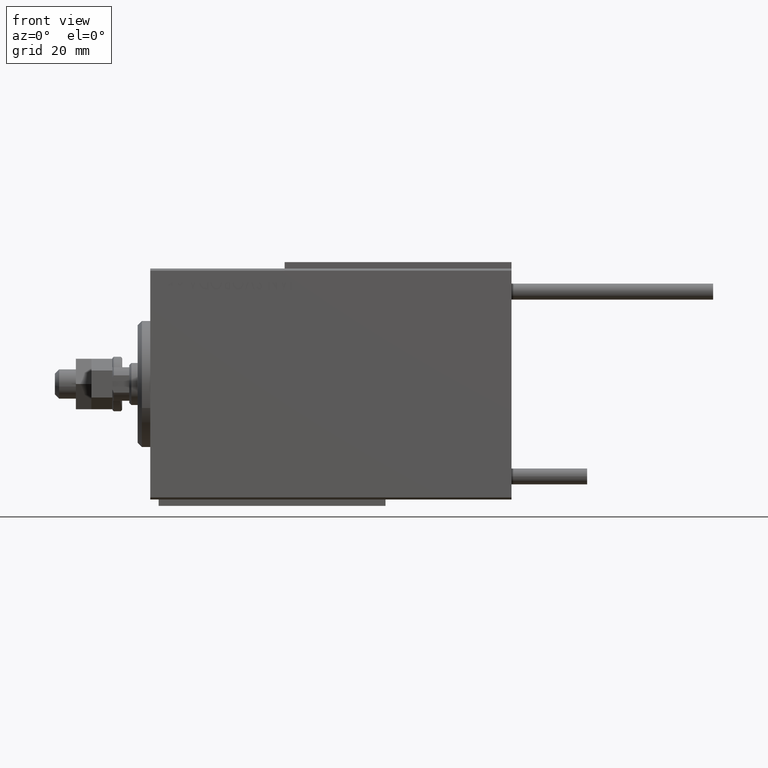
[diagram: clean part render]
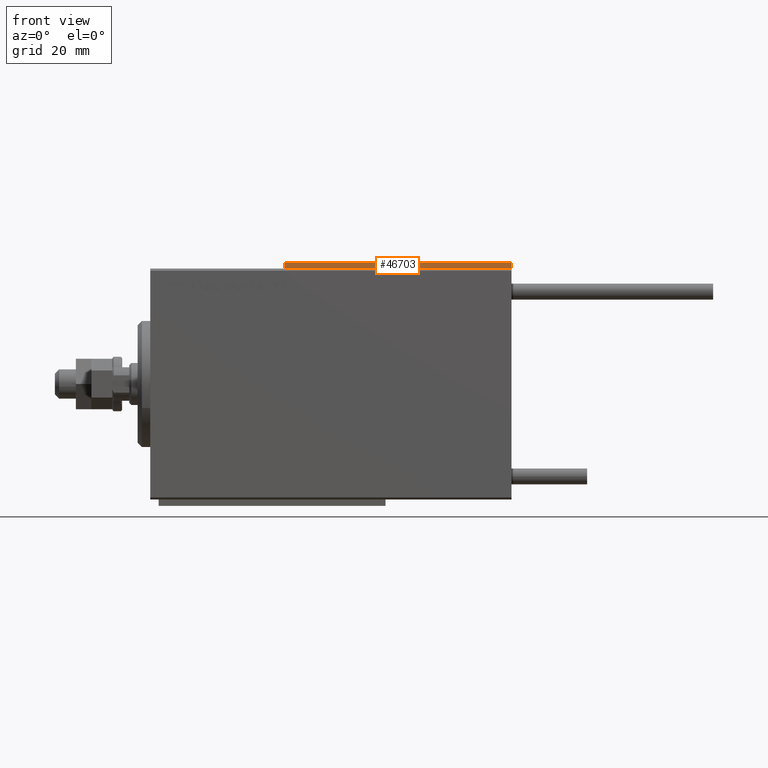
[diagram: same view with one face highlighted and labeled with its STEP entity id]
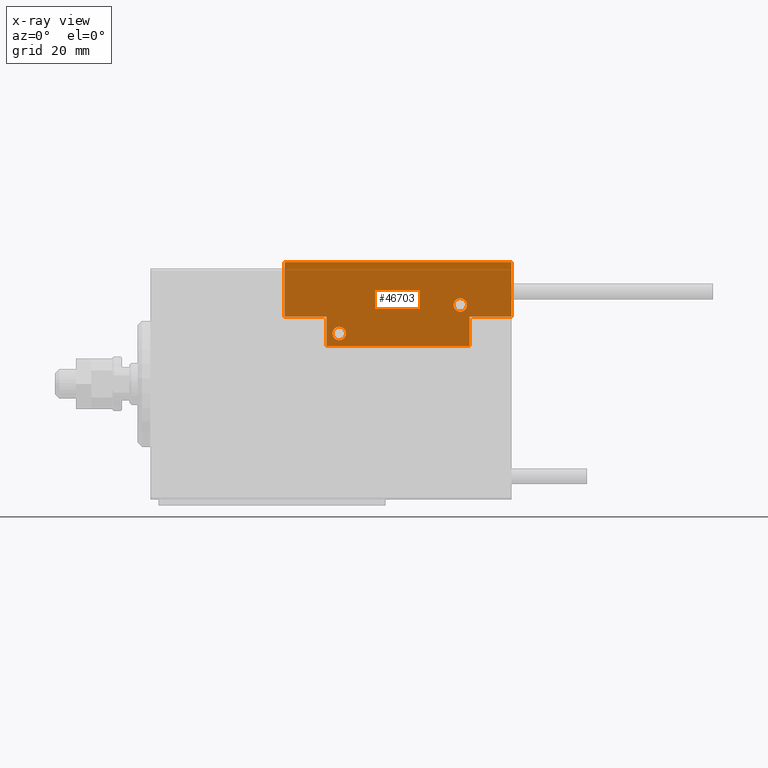
[diagram: x-ray of the same camera — body ghosted, the highlighted face saturated]
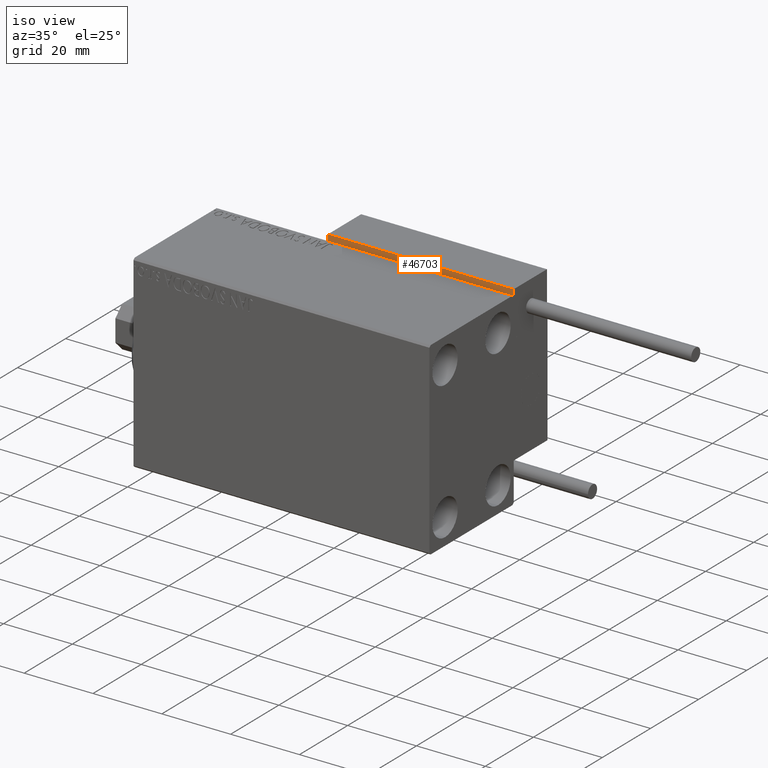
[diagram: same view with one face highlighted and labeled with its STEP entity id]
A machine part, front view. The second image highlights one B-rep face of the part: STEP entity #46703.
The next image is the same camera in x-ray: the body ghosted, the highlighted face saturated — about 91% of this face is hidden behind the body in this view.
A second angle (iso view) of the same face is appended — the face is thin or edge-on in the first view.
In plain terms, the highlighted planar face has unit normal (0, 1, -0).
Its self-contained STEP definition (entity closure, byte-faithful):
#357 = DIRECTION ( 'NONE',  ( 1.000000000000000000, -1.734723475976796001E-16, 0.000000000000000000 ) ) ;
#548 = EDGE_CURVE ( 'NONE', #15836, #21571, #36846, .T. ) ;
#855 = CARTESIAN_POINT ( 'NONE',  ( -13.19999999999994778, 9.800000000000004263, 0.000000000000000000 ) ) ;
#1235 = DIRECTION ( 'NONE',  ( -1.000000000000000000, 6.424901762877062263E-17, 0.000000000000000000 ) ) ;
#1238 = VERTEX_POINT ( 'NONE', #48151 ) ;
#1342 = DIRECTION ( 'NONE',  ( 0.000000000000000000, 0.000000000000000000, 1.000000000000000000 ) ) ;
#1600 = DIRECTION ( 'NONE',  ( 1.000000000000000000, 0.000000000000000000, 0.000000000000000000 ) ) ;
#1655 = AXIS2_PLACEMENT_3D ( 'NONE', #10743, #22430, #37887 ) ;
#3042 = DIRECTION ( 'NONE',  ( 0.000000000000000000, -1.000000000000000000, 0.000000000000000000 ) ) ;
#3164 = DIRECTION ( 'NONE',  ( 1.000000000000000000, 0.000000000000000000, 0.000000000000000000 ) ) ;
#3224 = VERTEX_POINT ( 'NONE', #40754 ) ;
#4169 = LINE ( 'NONE', #19647, #18346 ) ;
#4189 = LINE ( 'NONE', #27290, #45401 ) ;
#4538 = ORIENTED_EDGE ( 'NONE', *, *, #8335, .F. ) ;
#5755 = DIRECTION ( 'NONE',  ( -0.000000000000000000, 0.000000000000000000, 1.000000000000000000 ) ) ;
#5830 = ORIENTED_EDGE ( 'NONE', *, *, #23281, .F. ) ;
#6606 = CARTESIAN_POINT ( 'NONE',  ( -16.99999999999999289, 7.000000000000003553, 0.000000000000000000 ) ) ;
#8335 = EDGE_CURVE ( 'NONE', #31310, #3224, #15556, .T. ) ;
#8605 = DIRECTION ( 'NONE',  ( 1.000000000000000000, 0.000000000000000000, 0.000000000000000000 ) ) ;
#9548 = FACE_BOUND ( 'NONE', #15182, .T. ) ;
#10057 = DIRECTION ( 'NONE',  ( 1.000000000000000000, 0.000000000000000000, 0.000000000000000000 ) ) ;
#10557 = AXIS2_PLACEMENT_3D ( 'NONE', #39470, #42776, #35673 ) ;
#10613 = EDGE_CURVE ( 'NONE', #37537, #35077, #4169, .T. ) ;
#10653 = ORIENTED_EDGE ( 'NONE', *, *, #35875, .T. ) ;
#10743 = CARTESIAN_POINT ( 'NONE',  ( -14.79999999999994920, 9.800000000000004263, 0.000000000000000000 ) ) ;
#11638 = ORIENTED_EDGE ( 'NONE', *, *, #38762, .F. ) ;
#11764 = LINE ( 'NONE', #23207, #33444 ) ;
#12022 = ORIENTED_EDGE ( 'NONE', *, *, #22659, .F. ) ;
#12827 = AXIS2_PLACEMENT_3D ( 'NONE', #34144, #30316, #3164 ) ;
#13257 = CARTESIAN_POINT ( 'NONE',  ( 16.99999999999999289, 3.252606517456513302E-15, 0.000000000000000000 ) ) ;
#15182 = EDGE_LOOP ( 'NONE', ( #39883, #10653 ) ) ;
#15556 = LINE ( 'NONE', #31054, #30568 ) ;
#15836 = VERTEX_POINT ( 'NONE', #28171 ) ;
#15983 = ORIENTED_EDGE ( 'NONE', *, *, #548, .T. ) ;
#16325 = VECTOR ( 'NONE', #3042, 1000.000000000000000 ) ;
#17447 = CARTESIAN_POINT ( 'NONE',  ( 12.39999999999999858, 3.000000000000002665, 0.000000000000000000 ) ) ;
#18346 = VECTOR ( 'NONE', #357, 1000.000000000000000 ) ;
#18706 = EDGE_CURVE ( 'NONE', #40735, #37537, #35516, .T. ) ;
#18736 = VECTOR ( 'NONE', #8605, 1000.000000000000000 ) ;
#18807 = VERTEX_POINT ( 'NONE', #43854 ) ;
#19647 = CARTESIAN_POINT ( 'NONE',  ( 17.00000000000000000, 7.000000000000009770, 0.000000000000000000 ) ) ;
#20236 = EDGE_CURVE ( 'NONE', #18807, #27806, #20288, .T. ) ;
#20273 = CARTESIAN_POINT ( 'NONE',  ( -16.99999999999999289, 3.252606517456513302E-15, 0.000000000000000000 ) ) ;
#20288 = CIRCLE ( 'NONE', #10557, 1.600000000000000755 ) ;
#21030 = ORIENTED_EDGE ( 'NONE', *, *, #27471, .F. ) ;
#21571 = VERTEX_POINT ( 'NONE', #855 ) ;
#22361 = CARTESIAN_POINT ( 'NONE',  ( -26.99999999999994671, 7.000000000000005329, 0.000000000000000000 ) ) ;
#22430 = DIRECTION ( 'NONE',  ( 0.000000000000000000, 0.000000000000000000, 1.000000000000000000 ) ) ;
#22659 = EDGE_CURVE ( 'NONE', #39094, #40735, #31951, .T. ) ;
#23207 = CARTESIAN_POINT ( 'NONE',  ( 27.00000000000006395, 7.000000000000007994, 0.000000000000000000 ) ) ;
#23281 = EDGE_CURVE ( 'NONE', #25815, #31310, #4189, .T. ) ;
#25033 = CARTESIAN_POINT ( 'NONE',  ( -16.99999999999999289, 3.252606517456513302E-15, 0.000000000000000000 ) ) ;
#25815 = VERTEX_POINT ( 'NONE', #28930 ) ;
#26065 = PLANE ( 'NONE',  #26095 ) ;
#26095 = AXIS2_PLACEMENT_3D ( 'NONE', #40502, #5755, #10057 ) ;
#27021 = DIRECTION ( 'NONE',  ( 0.000000000000000000, 1.000000000000000000, 0.000000000000000000 ) ) ;
#27290 = CARTESIAN_POINT ( 'NONE',  ( -26.99999999999993605, 20.00000000000002132, 0.000000000000000000 ) ) ;
#27471 = EDGE_CURVE ( 'NONE', #3224, #39094, #37050, .T. ) ;
#27806 = VERTEX_POINT ( 'NONE', #17447 ) ;
#28171 = CARTESIAN_POINT ( 'NONE',  ( -16.39999999999994884, 9.800000000000004263, 0.000000000000000000 ) ) ;
#28356 = VECTOR ( 'NONE', #1235, 1000.000000000000000 ) ;
#28641 = CARTESIAN_POINT ( 'NONE',  ( 16.99999999999999289, 3.252606517456513302E-15, 0.000000000000000000 ) ) ;
#28930 = CARTESIAN_POINT ( 'NONE',  ( -26.99999999999993605, 20.00000000000002132, 0.000000000000000000 ) ) ;
#30316 = DIRECTION ( 'NONE',  ( 0.000000000000000000, 0.000000000000000000, 1.000000000000000000 ) ) ;
#30568 = VECTOR ( 'NONE', #35360, 1000.000000000000000 ) ;
#31054 = CARTESIAN_POINT ( 'NONE',  ( -26.99999999999994671, 7.000000000000005329, 0.000000000000000000 ) ) ;
#31310 = VERTEX_POINT ( 'NONE', #22361 ) ;
#31447 = ORIENTED_EDGE ( 'NONE', *, *, #10613, .F. ) ;
#31951 = LINE ( 'NONE', #20273, #18736 ) ;
#32800 = AXIS2_PLACEMENT_3D ( 'NONE', #40659, #1342, #1600 ) ;
#33444 = VECTOR ( 'NONE', #27021, 1000.000000000000000 ) ;
#34144 = CARTESIAN_POINT ( 'NONE',  ( 13.99999999999999822, 3.000000000000002665, 0.000000000000000000 ) ) ;
#34687 = EDGE_LOOP ( 'NONE', ( #40372, #15983 ) ) ;
#35077 = VERTEX_POINT ( 'NONE', #44469 ) ;
#35360 = DIRECTION ( 'NONE',  ( 1.000000000000000000, -1.734723475976815230E-16, 0.000000000000000000 ) ) ;
#35516 = LINE ( 'NONE', #28641, #46113 ) ;
#35673 = DIRECTION ( 'NONE',  ( 1.000000000000000000, 0.000000000000000000, 0.000000000000000000 ) ) ;
#35705 = CIRCLE ( 'NONE', #1655, 1.600000000000000755 ) ;
#35875 = EDGE_CURVE ( 'NONE', #27806, #18807, #48524, .T. ) ;
#36007 = LINE ( 'NONE', #40046, #28356 ) ;
#36313 = CARTESIAN_POINT ( 'NONE',  ( 17.00000000000000000, 7.000000000000009770, 0.000000000000000000 ) ) ;
#36846 = CIRCLE ( 'NONE', #32800, 1.600000000000000755 ) ;
#37050 = LINE ( 'NONE', #6606, #16325 ) ;
#37270 = ORIENTED_EDGE ( 'NONE', *, *, #44549, .F. ) ;
#37537 = VERTEX_POINT ( 'NONE', #36313 ) ;
#37887 = DIRECTION ( 'NONE',  ( 1.000000000000000000, 0.000000000000000000, 0.000000000000000000 ) ) ;
#38582 = ORIENTED_EDGE ( 'NONE', *, *, #18706, .F. ) ;
#38762 = EDGE_CURVE ( 'NONE', #1238, #25815, #36007, .T. ) ;
#39094 = VERTEX_POINT ( 'NONE', #25033 ) ;
#39470 = CARTESIAN_POINT ( 'NONE',  ( 13.99999999999999822, 3.000000000000002665, 0.000000000000000000 ) ) ;
#39535 = EDGE_CURVE ( 'NONE', #21571, #15836, #35705, .T. ) ;
#39883 = ORIENTED_EDGE ( 'NONE', *, *, #20236, .T. ) ;
#40046 = CARTESIAN_POINT ( 'NONE',  ( 27.00000000000006395, 20.00000000000001776, 0.000000000000000000 ) ) ;
#40372 = ORIENTED_EDGE ( 'NONE', *, *, #39535, .T. ) ;
#40502 = CARTESIAN_POINT ( 'NONE',  ( 0.000000000000000000, 0.000000000000000000, 0.000000000000000000 ) ) ;
#40659 = CARTESIAN_POINT ( 'NONE',  ( -14.79999999999994920, 9.800000000000004263, 0.000000000000000000 ) ) ;
#40735 = VERTEX_POINT ( 'NONE', #13257 ) ;
#40754 = CARTESIAN_POINT ( 'NONE',  ( -16.99999999999999289, 7.000000000000003553, 0.000000000000000000 ) ) ;
#42746 = DIRECTION ( 'NONE',  ( -8.006416042969869188E-16, -1.000000000000000000, 0.000000000000000000 ) ) ;
#42776 = DIRECTION ( 'NONE',  ( 0.000000000000000000, 0.000000000000000000, 1.000000000000000000 ) ) ;
#43854 = CARTESIAN_POINT ( 'NONE',  ( 15.59999999999999964, 3.000000000000002665, 0.000000000000000000 ) ) ;
#44469 = CARTESIAN_POINT ( 'NONE',  ( 27.00000000000006395, 7.000000000000007994, 0.000000000000000000 ) ) ;
#44549 = EDGE_CURVE ( 'NONE', #35077, #1238, #11764, .T. ) ;
#45330 = FACE_OUTER_BOUND ( 'NONE', #49074, .T. ) ;
#45401 = VECTOR ( 'NONE', #42746, 1000.000000000000000 ) ;
#46113 = VECTOR ( 'NONE', #47409, 1000.000000000000000 ) ;
#46703 = ADVANCED_FACE ( 'NONE', ( #48869, #9548, #45330 ), #26065, .F. ) ;
#47409 = DIRECTION ( 'NONE',  ( 9.912705577010318647E-16, 1.000000000000000000, 0.000000000000000000 ) ) ;
#48151 = CARTESIAN_POINT ( 'NONE',  ( 27.00000000000006395, 20.00000000000001776, 0.000000000000000000 ) ) ;
#48524 = CIRCLE ( 'NONE', #12827, 1.600000000000000755 ) ;
#48869 = FACE_BOUND ( 'NONE', #34687, .T. ) ;
#49074 = EDGE_LOOP ( 'NONE', ( #31447, #38582, #12022, #21030, #4538, #5830, #11638, #37270 ) ) ;